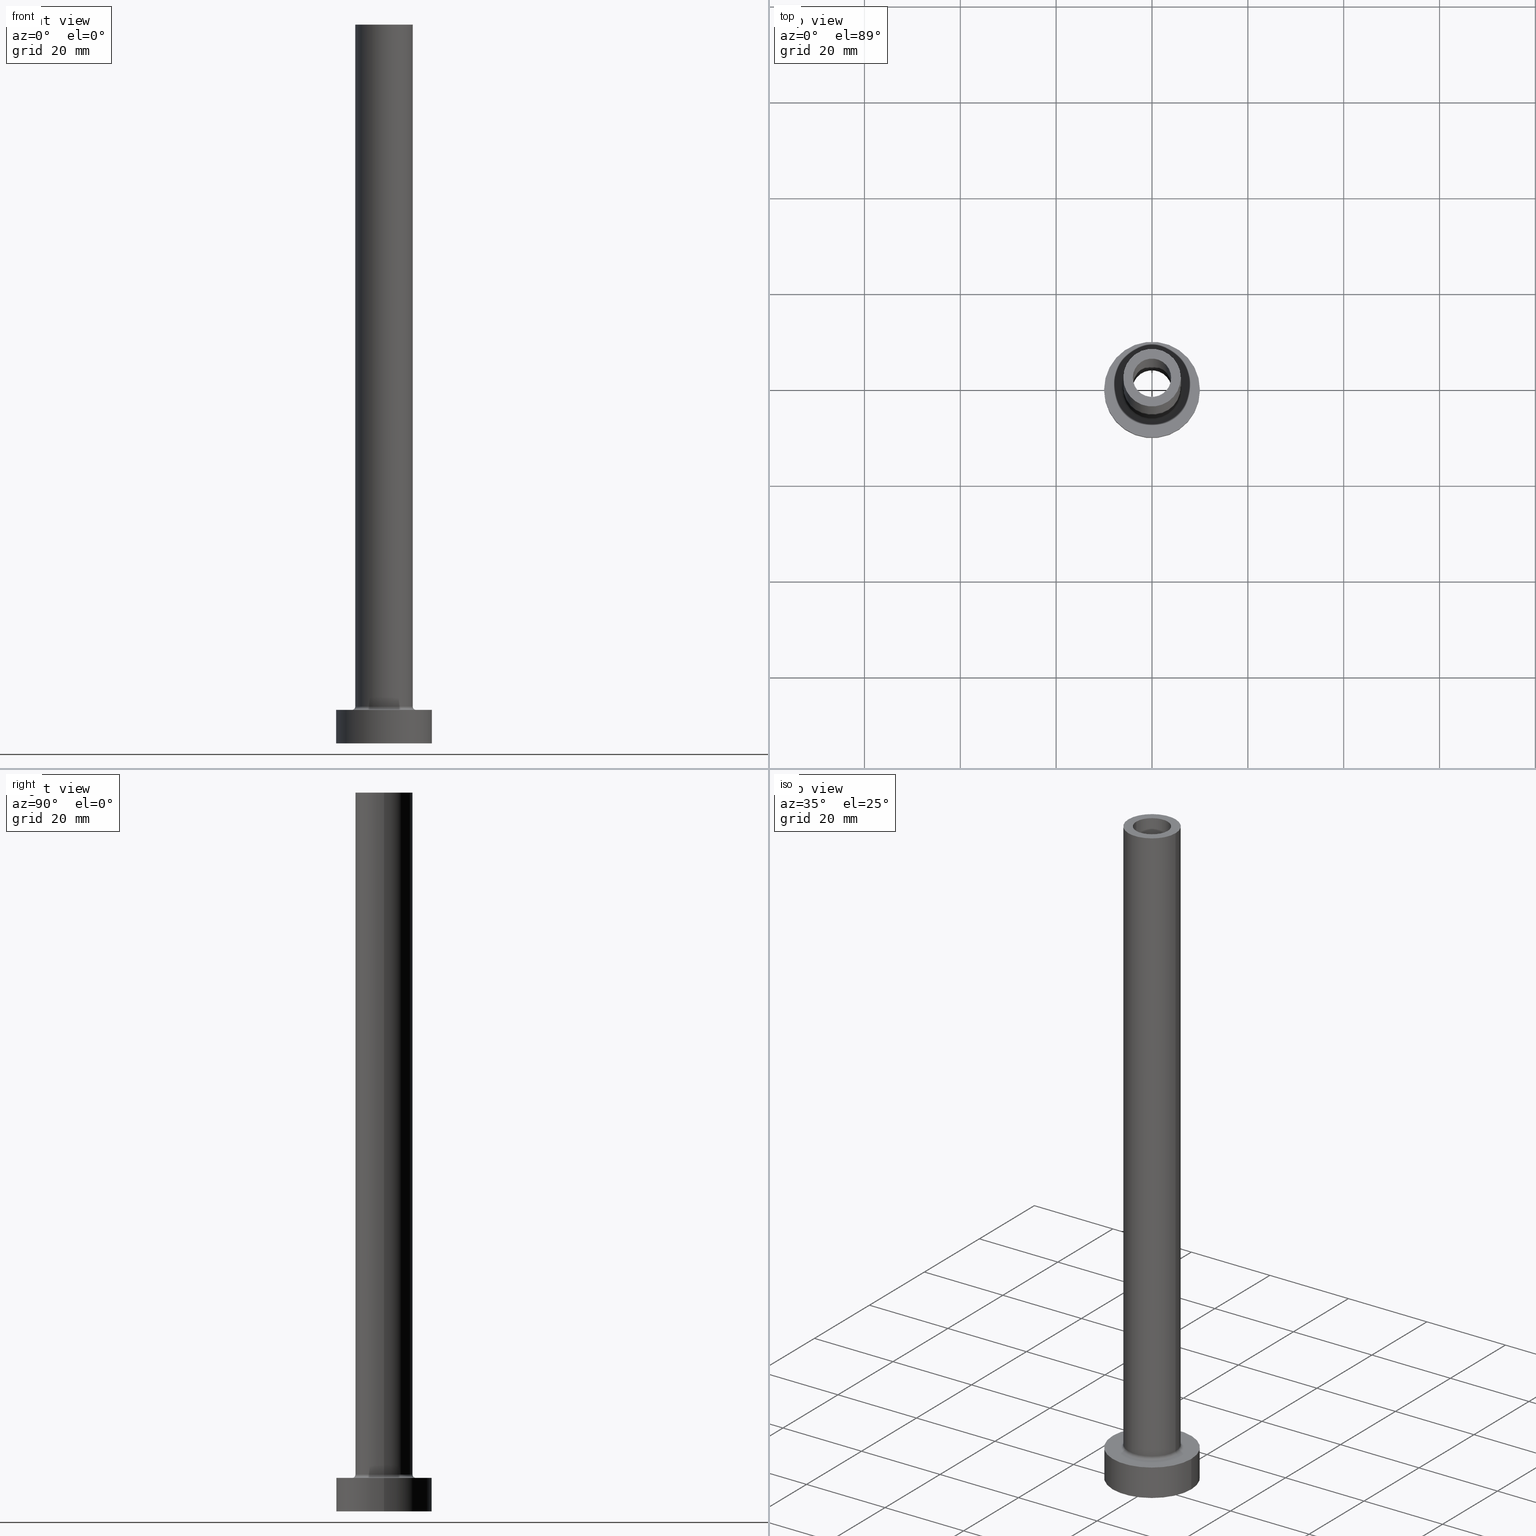
[diagram: canonical four-view strip — front | top / right | iso, engineering-drawing reading convention]
A machine part, canonical four-view strip (front | top / right | iso — engineering-drawing reading convention). The complete STEP part file that produces these views, byte-faithful:
ISO-10303-21;
HEADER;
FILE_DESCRIPTION (( 'STEP AP203' ),
    '1' );
FILE_NAME ('7359.STEP',
    '2023-02-13T09:10:50',
    ( '' ),
    ( '' ),
    'SwSTEP 2.0',
    'SolidWorks 2019',
    '' );
FILE_SCHEMA (( 'CONFIG_CONTROL_DESIGN' ));
ENDSEC;

DATA;
#1 = CARTESIAN_POINT ( 'NONE',  ( 0.000000000000000000, 0.000000000000000000, 150.0000000000000000 ) ) ;
#2 = ADVANCED_FACE ( 'NONE', ( #198, #190 ), #298, .T. ) ;
#3 = DIRECTION ( 'NONE',  ( 0.000000000000000000, 0.000000000000000000, -1.000000000000000000 ) ) ;
#4 = PERSON_AND_ORGANIZATION ( #136, #15 ) ;
#5 = DIRECTION ( 'NONE',  ( -0.000000000000000000, -0.000000000000000000, -1.000000000000000000 ) ) ;
#6 = ADVANCED_FACE ( 'NONE', ( #373 ), #400, .F. ) ;
#7 = ORIENTED_EDGE ( 'NONE', *, *, #301, .T. ) ;
#8 = CARTESIAN_POINT ( 'NONE',  ( -10.00000000000000000, 0.000000000000000000, 0.000000000000000000 ) ) ;
#9 = ADVANCED_BREP_SHAPE_REPRESENTATION ( '7359', ( #123, #105 ), #338 ) ;
#10 = EDGE_CURVE ( 'NONE', #386, #135, #185, .T. ) ;
#11 = DIRECTION ( 'NONE',  ( 1.000000000000000000, 0.000000000000000000, 0.000000000000000000 ) ) ;
#12 = VERTEX_POINT ( 'NONE', #16 ) ;
#13 = APPROVAL_DATE_TIME ( #336, #333 ) ;
#14 = CIRCLE ( 'NONE', #263, 10.00000000000000000 ) ;
#15 = ORGANIZATION ( 'NEUR�EN�', 'NEUR�EN�', '' ) ;
#16 = CARTESIAN_POINT ( 'NONE',  ( 10.00000000000000000, 1.224646799147353256E-15, 0.000000000000000000 ) ) ;
#17 = ORIENTED_EDGE ( 'NONE', *, *, #220, .T. ) ;
#18 = SHAPE_DEFINITION_REPRESENTATION ( #427, #9 ) ;
#19 = VERTEX_POINT ( 'NONE', #444 ) ;
#20 = PERSON_AND_ORGANIZATION_ROLE ( 'classification_officer' ) ;
#21 = LINE ( 'NONE', #131, #148 ) ;
#22 = ORIENTED_EDGE ( 'NONE', *, *, #242, .T. ) ;
#23 = DIRECTION ( 'NONE',  ( 1.000000000000000000, 0.000000000000000000, -0.000000000000000000 ) ) ;
#24 = AXIS2_PLACEMENT_3D ( 'NONE', #395, #48, #262 ) ;
#25 = ORIENTED_EDGE ( 'NONE', *, *, #277, .F. ) ;
#26 = EDGE_CURVE ( 'NONE', #374, #12, #75, .T. ) ;
#27 = FACE_BOUND ( 'NONE', #54, .T. ) ;
#28 = ORIENTED_EDGE ( 'NONE', *, *, #300, .F. ) ;
#29 = CARTESIAN_POINT ( 'NONE',  ( 4.150000000000000355, 5.082284216461515156E-16, 0.000000000000000000 ) ) ;
#30 = DIRECTION ( 'NONE',  ( 1.224646799147353207E-16, 1.000000000000000000, -0.000000000000000000 ) ) ;
#31 = AXIS2_PLACEMENT_3D ( 'NONE', #187, #364, #113 ) ;
#32 = LOCAL_TIME ( 10, 10, 50.00000000000000000, #379 ) ;
#33 = DIRECTION ( 'NONE',  ( 0.000000000000000000, 0.000000000000000000, 1.000000000000000000 ) ) ;
#34 = DIRECTION ( 'NONE',  ( 0.000000000000000000, 0.000000000000000000, -1.000000000000000000 ) ) ;
#35 = LINE ( 'NONE', #287, #375 ) ;
#36 = AXIS2_PLACEMENT_3D ( 'NONE', #305, #99, #56 ) ;
#37 = CIRCLE ( 'NONE', #174, 4.150000000000000355 ) ;
#38 = DIRECTION ( 'NONE',  ( 1.000000000000000000, 0.000000000000000000, 0.000000000000000000 ) ) ;
#39 = DIRECTION ( 'NONE',  ( 1.000000000000000000, 0.000000000000000000, 0.000000000000000000 ) ) ;
#40 = VERTEX_POINT ( 'NONE', #8 ) ;
#41 = AXIS2_PLACEMENT_3D ( 'NONE', #348, #201, #414 ) ;
#42 = LOCAL_TIME ( 10, 10, 50.00000000000000000, #200 ) ;
#43 = DIRECTION ( 'NONE',  ( 0.000000000000000000, 0.000000000000000000, 1.000000000000000000 ) ) ;
#44 = ORIENTED_EDGE ( 'NONE', *, *, #397, .T. ) ;
#45 = DIRECTION ( 'NONE',  ( 0.000000000000000000, 0.000000000000000000, 1.000000000000000000 ) ) ;
#46 = EDGE_LOOP ( 'NONE', ( #210, #80 ) ) ;
#47 = APPROVAL_ROLE ( '' ) ;
#48 = DIRECTION ( 'NONE',  ( 0.000000000000000000, 0.000000000000000000, 1.000000000000000000 ) ) ;
#49 = VERTEX_POINT ( 'NONE', #340 ) ;
#50 = PERSON_AND_ORGANIZATION ( #136, #15 ) ;
#51 = CIRCLE ( 'NONE', #195, 6.000000000000000888 ) ;
#52 = LOCAL_TIME ( 10, 10, 50.00000000000000000, #308 ) ;
#53 = CARTESIAN_POINT ( 'NONE',  ( 0.000000000000000000, 0.000000000000000000, 105.0000000000000000 ) ) ;
#54 = EDGE_LOOP ( 'NONE', ( #442, #60 ) ) ;
#55 = PERSON_AND_ORGANIZATION ( #136, #15 ) ;
#56 = DIRECTION ( 'NONE',  ( -1.000000000000000000, 0.000000000000000000, 0.000000000000000000 ) ) ;
#57 = ORIENTED_EDGE ( 'NONE', *, *, #313, .F. ) ;
#58 = EDGE_CURVE ( 'NONE', #189, #303, #431, .T. ) ;
#59 = DIRECTION ( 'NONE',  ( 1.000000000000000000, 0.000000000000000000, 0.000000000000000000 ) ) ;
#60 = ORIENTED_EDGE ( 'NONE', *, *, #435, .F. ) ;
#61 = FACE_OUTER_BOUND ( 'NONE', #370, .T. ) ;
#62 = CIRCLE ( 'NONE', #97, 6.000000000000000888 ) ;
#63 = AXIS2_PLACEMENT_3D ( 'NONE', #109, #285, #101 ) ;
#64 = DIRECTION ( 'NONE',  ( -0.000000000000000000, -0.000000000000000000, -1.000000000000000000 ) ) ;
#65 = ORIENTED_EDGE ( 'NONE', *, *, #111, .T. ) ;
#66 = DIRECTION ( 'NONE',  ( 0.000000000000000000, 0.000000000000000000, 1.000000000000000000 ) ) ;
#67 = ORIENTED_EDGE ( 'NONE', *, *, #106, .F. ) ;
#68 = DIRECTION ( 'NONE',  ( -1.000000000000000000, 0.000000000000000000, 0.000000000000000000 ) ) ;
#69 = CIRCLE ( 'NONE', #165, 4.000000000000000000 ) ;
#70 = LINE ( 'NONE', #457, #130 ) ;
#71 = PRODUCT_DEFINITION ( 'NEZN�M�', '', #363, #230 ) ;
#72 = DIRECTION ( 'NONE',  ( 0.000000000000000000, 0.000000000000000000, -1.000000000000000000 ) ) ;
#73 = DIRECTION ( 'NONE',  ( 0.000000000000000000, 0.000000000000000000, 1.000000000000000000 ) ) ;
#74 = DIRECTION ( 'NONE',  ( 0.000000000000000000, 0.000000000000000000, 1.000000000000000000 ) ) ;
#75 = LINE ( 'NONE', #228, #365 ) ;
#76 = AXIS2_PLACEMENT_3D ( 'NONE', #169, #449, #163 ) ;
#77 = DIRECTION ( 'NONE',  ( -0.000000000000000000, -0.000000000000000000, -1.000000000000000000 ) ) ;
#78 = EDGE_LOOP ( 'NONE', ( #22, #401 ) ) ;
#79 = DIRECTION ( 'NONE',  ( 0.000000000000000000, 0.000000000000000000, -1.000000000000000000 ) ) ;
#80 = ORIENTED_EDGE ( 'NONE', *, *, #106, .T. ) ;
#81 = DATE_AND_TIME ( #448, #42 ) ;
#82 = EDGE_LOOP ( 'NONE', ( #108, #154, #410, #202 ) ) ;
#83 = VERTEX_POINT ( 'NONE', #149 ) ;
#84 = APPROVAL_ROLE ( '' ) ;
#85 = CIRCLE ( 'NONE', #274, 4.000000000000000000 ) ;
#86 = ADVANCED_FACE ( 'NONE', ( #221 ), #122, .T. ) ;
#87 = CARTESIAN_POINT ( 'NONE',  ( -6.700000000000001066, 8.205133554287267548E-16, 7.000000000000006217 ) ) ;
#88 = ORIENTED_EDGE ( 'NONE', *, *, #249, .F. ) ;
#89 = APPROVAL_DATE_TIME ( #268, #317 ) ;
#90 = EDGE_CURVE ( 'NONE', #12, #40, #350, .T. ) ;
#91 = DIRECTION ( 'NONE',  ( 0.000000000000000000, 0.000000000000000000, 1.000000000000000000 ) ) ;
#92 = ORIENTED_EDGE ( 'NONE', *, *, #389, .T. ) ;
#93 = APPROVAL_ROLE ( '' ) ;
#94 = DIRECTION ( 'NONE',  ( -0.000000000000000000, -0.000000000000000000, -1.000000000000000000 ) ) ;
#95 = EDGE_LOOP ( 'NONE', ( #245, #294, #65, #335 ) ) ;
#96 = LINE ( 'NONE', #320, #293 ) ;
#97 = AXIS2_PLACEMENT_3D ( 'NONE', #411, #91, #59 ) ;
#98 = LOCAL_TIME ( 10, 10, 50.00000000000000000, #406 ) ;
#99 = DIRECTION ( 'NONE',  ( -0.000000000000000000, -0.000000000000000000, -1.000000000000000000 ) ) ;
#100 = ORIENTED_EDGE ( 'NONE', *, *, #249, .T. ) ;
#101 = DIRECTION ( 'NONE',  ( -1.000000000000000000, 0.000000000000000000, 0.000000000000000000 ) ) ;
#102 = VERTEX_POINT ( 'NONE', #232 ) ;
#103 = EDGE_CURVE ( 'NONE', #345, #175, #328, .T. ) ;
#104 = DIRECTION ( 'NONE',  ( -1.000000000000000000, 0.000000000000000000, 0.000000000000000000 ) ) ;
#105 = AXIS2_PLACEMENT_3D ( 'NONE', #443, #292, #347 ) ;
#106 = EDGE_CURVE ( 'NONE', #175, #345, #447, .T. ) ;
#107 = FACE_OUTER_BOUND ( 'NONE', #437, .T. ) ;
#108 = ORIENTED_EDGE ( 'NONE', *, *, #26, .F. ) ;
#109 = CARTESIAN_POINT ( 'NONE',  ( 0.000000000000000000, 0.000000000000000000, 116.7379725676966729 ) ) ;
#110 =( LENGTH_UNIT ( ) NAMED_UNIT ( * ) SI_UNIT ( .MILLI., .METRE. ) );
#111 = EDGE_CURVE ( 'NONE', #405, #189, #261, .T. ) ;
#112 = PERSON_AND_ORGANIZATION_ROLE ( 'creator' ) ;
#113 = DIRECTION ( 'NONE',  ( 1.000000000000000000, 0.000000000000000000, 0.000000000000000000 ) ) ;
#114 = EDGE_LOOP ( 'NONE', ( #243, #445 ) ) ;
#115 = EDGE_CURVE ( 'NONE', #374, #49, #398, .T. ) ;
#116 = DIRECTION ( 'NONE',  ( 1.000000000000000000, 0.000000000000000000, 0.000000000000000000 ) ) ;
#117 = EDGE_LOOP ( 'NONE', ( #223, #139, #267, #156 ) ) ;
#118 = CIRCLE ( 'NONE', #319, 4.150000000000000355 ) ;
#119 = DIRECTION ( 'NONE',  ( 1.000000000000000000, 0.000000000000000000, -0.000000000000000000 ) ) ;
#120 = ORIENTED_EDGE ( 'NONE', *, *, #103, .F. ) ;
#121 = PERSON_AND_ORGANIZATION_ROLE ( 'design_owner' ) ;
#122 = CYLINDRICAL_SURFACE ( 'NONE', #392, 6.000000000000000888 ) ;
#123 = MANIFOLD_SOLID_BREP ( 'Odebrat vysunut�m4', #424 ) ;
#124 = APPROVAL_STATUS ( 'not_yet_approved' ) ;
#125 = DIRECTION ( 'NONE',  ( 1.000000000000000000, 0.000000000000000000, 0.000000000000000000 ) ) ;
#126 = EDGE_LOOP ( 'NONE', ( #28, #25 ) ) ;
#127 = EDGE_CURVE ( 'NONE', #19, #415, #253, .T. ) ;
#128 = UNCERTAINTY_MEASURE_WITH_UNIT (LENGTH_MEASURE( 1.000000000000000082E-05 ), #110, 'distance_accuracy_value', 'NONE');
#129 = AXIS2_PLACEMENT_3D ( 'NONE', #250, #94, #283 ) ;
#130 = VECTOR ( 'NONE', #3, 1000.000000000000000 ) ;
#131 = CARTESIAN_POINT ( 'NONE',  ( -10.00000000000000000, 0.000000000000000000, 7.000000000000000000 ) ) ;
#132 = PERSON_AND_ORGANIZATION ( #136, #15 ) ;
#133 = FACE_OUTER_BOUND ( 'NONE', #420, .T. ) ;
#134 = CARTESIAN_POINT ( 'NONE',  ( 0.000000000000000000, 0.000000000000000000, 7.700000000000012612 ) ) ;
#135 = VERTEX_POINT ( 'NONE', #193 ) ;
#136 = PERSON ( 'NEUR�EN�', 'NEUR�EN�', 'NEUR�EN�', ('NEUR�EN�'), ('NEUR�EN�'), ('NEUR�EN�') ) ;
#137 = FACE_OUTER_BOUND ( 'NONE', #117, .T. ) ;
#138 = CC_DESIGN_SECURITY_CLASSIFICATION ( #418, ( #363 ) ) ;
#139 = ORIENTED_EDGE ( 'NONE', *, *, #26, .T. ) ;
#140 = DIRECTION ( 'NONE',  ( -0.000000000000000000, -0.000000000000000000, -1.000000000000000000 ) ) ;
#141 = DIRECTION ( 'NONE',  ( 0.000000000000000000, 0.000000000000000000, -1.000000000000000000 ) ) ;
#142 = EDGE_CURVE ( 'NONE', #40, #12, #207, .T. ) ;
#143 = CC_DESIGN_PERSON_AND_ORGANIZATION_ASSIGNMENT ( #50, #20, ( #418 ) ) ;
#144 = DIRECTION ( 'NONE',  ( -0.000000000000000000, -0.000000000000000000, -1.000000000000000000 ) ) ;
#145 = DIRECTION ( 'NONE',  ( -0.000000000000000000, -0.000000000000000000, -1.000000000000000000 ) ) ;
#146 = CARTESIAN_POINT ( 'NONE',  ( 4.000000000000000000, 4.898587196589411843E-16, 150.0000000000000000 ) ) ;
#147 = CALENDAR_DATE ( 2023, 13, 2 ) ;
#148 = VECTOR ( 'NONE', #64, 1000.000000000000000 ) ;
#149 = CARTESIAN_POINT ( 'NONE',  ( -6.000000000000000888, 0.000000000000000000, 150.0000000000000000 ) ) ;
#150 = ORIENTED_EDGE ( 'NONE', *, *, #142, .F. ) ;
#151 = EDGE_CURVE ( 'NONE', #135, #345, #246, .T. ) ;
#152 = ADVANCED_FACE ( 'NONE', ( #266 ), #159, .T. ) ;
#153 = DIRECTION ( 'NONE',  ( 0.000000000000000000, 0.000000000000000000, -1.000000000000000000 ) ) ;
#154 = ORIENTED_EDGE ( 'NONE', *, *, #220, .F. ) ;
#155 = CARTESIAN_POINT ( 'NONE',  ( -4.000000000000000000, 0.000000000000000000, 150.0000000000000000 ) ) ;
#156 = ORIENTED_EDGE ( 'NONE', *, *, #323, .F. ) ;
#157 = AXIS2_PLACEMENT_3D ( 'NONE', #330, #372, #269 ) ;
#158 = APPROVAL_PERSON_ORGANIZATION ( #432, #161, #93 ) ;
#159 = CYLINDRICAL_SURFACE ( 'NONE', #36, 6.000000000000000888 ) ;
#160 = DIRECTION ( 'NONE',  ( -0.000000000000000000, -0.000000000000000000, -1.000000000000000000 ) ) ;
#161 = APPROVAL ( #393, 'NEUR�EN�' ) ;
#162 = DATE_AND_TIME ( #206, #32 ) ;
#163 = DIRECTION ( 'NONE',  ( 1.000000000000000000, 0.000000000000000000, 0.000000000000000000 ) ) ;
#164 = DATE_AND_TIME ( #413, #275 ) ;
#165 = AXIS2_PLACEMENT_3D ( 'NONE', #237, #378, #312 ) ;
#166 = AXIS2_PLACEMENT_3D ( 'NONE', #290, #324, #38 ) ;
#167 = CARTESIAN_POINT ( 'NONE',  ( 0.000000000000000000, 0.000000000000000000, 105.0000000000000000 ) ) ;
#168 = ORIENTED_EDGE ( 'NONE', *, *, #300, .T. ) ;
#169 = CARTESIAN_POINT ( 'NONE',  ( 0.000000000000000000, 0.000000000000000000, 105.0000000000000000 ) ) ;
#170 = ORIENTED_EDGE ( 'NONE', *, *, #242, .F. ) ;
#171 = DIRECTION ( 'NONE',  ( -0.000000000000000000, -0.000000000000000000, -1.000000000000000000 ) ) ;
#172 = AXIS2_PLACEMENT_3D ( 'NONE', #399, #74, #119 ) ;
#173 = DIRECTION ( 'NONE',  ( 1.000000000000000000, 0.000000000000000000, 0.000000000000000000 ) ) ;
#174 = AXIS2_PLACEMENT_3D ( 'NONE', #178, #144, #421 ) ;
#175 = VERTEX_POINT ( 'NONE', #87 ) ;
#176 = DIRECTION ( 'NONE',  ( 1.000000000000000000, 0.000000000000000000, 0.000000000000000000 ) ) ;
#177 = ADVANCED_FACE ( 'NONE', ( #137 ), #450, .T. ) ;
#178 = CARTESIAN_POINT ( 'NONE',  ( 0.000000000000000000, 0.000000000000000000, 0.000000000000000000 ) ) ;
#179 = PRODUCT ( '7359', '7359', '', ( #196 ) ) ;
#180 = DIRECTION ( 'NONE',  ( 1.000000000000000000, 0.000000000000000000, -0.000000000000000000 ) ) ;
#181 = EDGE_LOOP ( 'NONE', ( #264, #170, #100, #458 ) ) ;
#182 = PRODUCT_RELATED_PRODUCT_CATEGORY ( 'detail', '', ( #179 ) ) ;
#183 = CARTESIAN_POINT ( 'NONE',  ( 0.000000000000000000, 0.000000000000000000, 0.000000000000000000 ) ) ;
#184 = CARTESIAN_POINT ( 'NONE',  ( 0.000000000000000000, 0.000000000000000000, 7.000000000000000000 ) ) ;
#185 = LINE ( 'NONE', #436, #281 ) ;
#186 = AXIS2_PLACEMENT_3D ( 'NONE', #219, #43, #116 ) ;
#187 = CARTESIAN_POINT ( 'NONE',  ( 0.000000000000000000, 0.000000000000000000, 7.000000000000000000 ) ) ;
#188 = ADVANCED_FACE ( 'NONE', ( #353, #419 ), #279, .F. ) ;
#189 = VERTEX_POINT ( 'NONE', #309 ) ;
#190 = FACE_OUTER_BOUND ( 'NONE', #78, .T. ) ;
#191 = ORIENTED_EDGE ( 'NONE', *, *, #241, .F. ) ;
#192 = CALENDAR_DATE ( 2023, 13, 2 ) ;
#193 = CARTESIAN_POINT ( 'NONE',  ( 6.000000000000000888, 7.347880794884120722E-16, 7.700000000000012612 ) ) ;
#194 = EDGE_LOOP ( 'NONE', ( #354, #7 ) ) ;
#195 = AXIS2_PLACEMENT_3D ( 'NONE', #387, #66, #380 ) ;
#196 = MECHANICAL_CONTEXT ( 'NONE', #297, 'mechanical' ) ;
#197 = CC_DESIGN_PERSON_AND_ORGANIZATION_ASSIGNMENT ( #203, #121, ( #179 ) ) ;
#198 = FACE_BOUND ( 'NONE', #126, .T. ) ;
#199 = EDGE_LOOP ( 'NONE', ( #296, #412, #291, #88 ) ) ;
#200 = COORDINATED_UNIVERSAL_TIME_OFFSET ( 1, 0, .AHEAD. ) ;
#201 = DIRECTION ( 'NONE',  ( 0.000000000000000000, 0.000000000000000000, 1.000000000000000000 ) ) ;
#202 = ORIENTED_EDGE ( 'NONE', *, *, #142, .T. ) ;
#203 = PERSON_AND_ORGANIZATION ( #136, #15 ) ;
#204 = DIRECTION ( 'NONE',  ( 0.000000000000000000, 0.000000000000000000, 1.000000000000000000 ) ) ;
#205 = ORIENTED_EDGE ( 'NONE', *, *, #260, .F. ) ;
#206 = CALENDAR_DATE ( 2023, 13, 2 ) ;
#207 = CIRCLE ( 'NONE', #459, 10.00000000000000000 ) ;
#208 = DIRECTION ( 'NONE',  ( 0.000000000000000000, 0.000000000000000000, 1.000000000000000000 ) ) ;
#209 = CARTESIAN_POINT ( 'NONE',  ( 0.000000000000000000, 0.000000000000000000, 150.0000000000000000 ) ) ;
#210 = ORIENTED_EDGE ( 'NONE', *, *, #103, .T. ) ;
#211 = CARTESIAN_POINT ( 'NONE',  ( -4.150000000000000355, 0.000000000000000000, 0.000000000000000000 ) ) ;
#212 = ORIENTED_EDGE ( 'NONE', *, *, #360, .F. ) ;
#213 = CIRCLE ( 'NONE', #460, 6.000000000000000888 ) ;
#214 = FACE_OUTER_BOUND ( 'NONE', #368, .T. ) ;
#215 =( NAMED_UNIT ( * ) SI_UNIT ( $, .STERADIAN. ) SOLID_ANGLE_UNIT ( ) );
#216 = AXIS2_PLACEMENT_3D ( 'NONE', #337, #302, #439 ) ;
#217 = APPROVAL_PERSON_ORGANIZATION ( #4, #333, #47 ) ;
#218 = CARTESIAN_POINT ( 'NONE',  ( -4.000000000000000000, 0.000000000000000000, 150.0000000000000000 ) ) ;
#219 = CARTESIAN_POINT ( 'NONE',  ( 0.000000000000000000, 0.000000000000000000, 105.0000000000000000 ) ) ;
#220 = EDGE_CURVE ( 'NONE', #49, #374, #14, .T. ) ;
#221 = FACE_OUTER_BOUND ( 'NONE', #199, .T. ) ;
#222 = CIRCLE ( 'NONE', #76, 4.000000000000000000 ) ;
#223 = ORIENTED_EDGE ( 'NONE', *, *, #115, .F. ) ;
#224 = AXIS2_PLACEMENT_3D ( 'NONE', #248, #30, #344 ) ;
#225 = CARTESIAN_POINT ( 'NONE',  ( 0.000000000000000000, 0.000000000000000000, 0.000000000000000000 ) ) ;
#226 = VERTEX_POINT ( 'NONE', #211 ) ;
#227 = PERSON_AND_ORGANIZATION_ROLE ( 'design_supplier' ) ;
#228 = CARTESIAN_POINT ( 'NONE',  ( 10.00000000000000000, 1.224646799147353256E-15, 7.000000000000000000 ) ) ;
#229 = VERTEX_POINT ( 'NONE', #29 ) ;
#230 = DESIGN_CONTEXT ( 'detailed design', #286, 'design' ) ;
#231 = CC_DESIGN_PERSON_AND_ORGANIZATION_ASSIGNMENT ( #271, #235, ( #363 ) ) ;
#232 = CARTESIAN_POINT ( 'NONE',  ( -6.000000000000000888, 0.000000000000000000, 7.700000000000012612 ) ) ;
#233 = AXIS2_PLACEMENT_3D ( 'NONE', #441, #79, #433 ) ;
#234 = AXIS2_PLACEMENT_3D ( 'NONE', #183, #145, #176 ) ;
#235 = PERSON_AND_ORGANIZATION_ROLE ( 'creator' ) ;
#236 = APPROVAL_PERSON_ORGANIZATION ( #311, #317, #84 ) ;
#237 = CARTESIAN_POINT ( 'NONE',  ( 0.000000000000000000, 0.000000000000000000, 150.0000000000000000 ) ) ;
#238 = EDGE_LOOP ( 'NONE', ( #150, #329 ) ) ;
#239 = COORDINATED_UNIVERSAL_TIME_OFFSET ( 1, 0, .AHEAD. ) ;
#240 = PLANE ( 'NONE',  #255 ) ;
#241 = EDGE_CURVE ( 'NONE', #102, #135, #51, .T. ) ;
#242 = EDGE_CURVE ( 'NONE', #83, #386, #318, .T. ) ;
#243 = ORIENTED_EDGE ( 'NONE', *, *, #346, .F. ) ;
#244 = DIRECTION ( 'NONE',  ( 1.000000000000000000, 0.000000000000000000, 0.000000000000000000 ) ) ;
#245 = ORIENTED_EDGE ( 'NONE', *, *, #389, .F. ) ;
#246 = CIRCLE ( 'NONE', #216, 0.7000000000000000666 ) ;
#247 = AXIS2_PLACEMENT_3D ( 'NONE', #184, #140, #104 ) ;
#248 = CARTESIAN_POINT ( 'NONE',  ( -6.700000000000001066, 8.205133554287267548E-16, 7.700000000000012612 ) ) ;
#249 = EDGE_CURVE ( 'NONE', #83, #102, #96, .T. ) ;
#250 = CARTESIAN_POINT ( 'NONE',  ( 0.000000000000000000, 0.000000000000000000, 7.000000000000000000 ) ) ;
#251 = CARTESIAN_POINT ( 'NONE',  ( 0.000000000000000000, 0.000000000000000000, 7.000000000000000000 ) ) ;
#252 = ORIENTED_EDGE ( 'NONE', *, *, #111, .F. ) ;
#253 = CIRCLE ( 'NONE', #408, 4.150000000000000355 ) ;
#254 = PLANE ( 'NONE',  #384 ) ;
#255 = AXIS2_PLACEMENT_3D ( 'NONE', #314, #204, #23 ) ;
#256 = CYLINDRICAL_SURFACE ( 'NONE', #265, 4.000000000000000000 ) ;
#257 = CARTESIAN_POINT ( 'NONE',  ( 4.150000000000000355, 5.082284216461515156E-16, 116.7379725676966729 ) ) ;
#258 = AXIS2_PLACEMENT_3D ( 'NONE', #167, #278, #407 ) ;
#259 = APPLICATION_PROTOCOL_DEFINITION ( 'international standard', 'config_control_design', 1994, #286 ) ;
#260 = EDGE_CURVE ( 'NONE', #135, #102, #62, .T. ) ;
#261 = LINE ( 'NONE', #155, #356 ) ;
#262 = DIRECTION ( 'NONE',  ( 1.000000000000000000, 0.000000000000000000, 0.000000000000000000 ) ) ;
#263 = AXIS2_PLACEMENT_3D ( 'NONE', #416, #446, #173 ) ;
#264 = ORIENTED_EDGE ( 'NONE', *, *, #10, .F. ) ;
#265 = AXIS2_PLACEMENT_3D ( 'NONE', #428, #72, #68 ) ;
#266 = FACE_OUTER_BOUND ( 'NONE', #181, .T. ) ;
#267 = ORIENTED_EDGE ( 'NONE', *, *, #90, .T. ) ;
#268 = DATE_AND_TIME ( #147, #98 ) ;
#269 = DIRECTION ( 'NONE',  ( 1.000000000000000000, 0.000000000000000000, 0.000000000000000000 ) ) ;
#270 = ORIENTED_EDGE ( 'NONE', *, *, #115, .T. ) ;
#271 = PERSON_AND_ORGANIZATION ( #136, #15 ) ;
#272 = CARTESIAN_POINT ( 'NONE',  ( 4.000000000000000000, 4.898587196589411843E-16, 105.0000000000000000 ) ) ;
#273 = ORIENTED_EDGE ( 'NONE', *, *, #435, .T. ) ;
#274 = AXIS2_PLACEMENT_3D ( 'NONE', #454, #351, #244 ) ;
#275 = LOCAL_TIME ( 10, 10, 50.00000000000000000, #239 ) ;
#276 = FACE_OUTER_BOUND ( 'NONE', #238, .T. ) ;
#277 = EDGE_CURVE ( 'NONE', #355, #405, #85, .T. ) ;
#278 = DIRECTION ( 'NONE',  ( 0.000000000000000000, 0.000000000000000000, 1.000000000000000000 ) ) ;
#279 = PLANE ( 'NONE',  #258 ) ;
#280 = ORIENTED_EDGE ( 'NONE', *, *, #127, .T. ) ;
#281 = VECTOR ( 'NONE', #5, 1000.000000000000000 ) ;
#282 = CC_DESIGN_APPROVAL ( #333, ( #418 ) ) ;
#283 = DIRECTION ( 'NONE',  ( -1.000000000000000000, 0.000000000000000000, 0.000000000000000000 ) ) ;
#284 = ORIENTED_EDGE ( 'NONE', *, *, #151, .F. ) ;
#285 = DIRECTION ( 'NONE',  ( 0.000000000000000000, 0.000000000000000000, -1.000000000000000000 ) ) ;
#286 = APPLICATION_CONTEXT ( 'configuration controlled 3d designs of mechanical parts and assemblies' ) ;
#287 = CARTESIAN_POINT ( 'NONE',  ( 4.000000000000000000, 4.898587196589411843E-16, 150.0000000000000000 ) ) ;
#288 = LINE ( 'NONE', #257, #453 ) ;
#289 = FACE_OUTER_BOUND ( 'NONE', #82, .T. ) ;
#290 = CARTESIAN_POINT ( 'NONE',  ( 0.000000000000000000, 0.000000000000000000, 7.700000000000012612 ) ) ;
#291 = ORIENTED_EDGE ( 'NONE', *, *, #260, .T. ) ;
#292 = DIRECTION ( 'NONE',  ( 0.000000000000000000, 0.000000000000000000, 1.000000000000000000 ) ) ;
#293 = VECTOR ( 'NONE', #171, 1000.000000000000000 ) ;
#294 = ORIENTED_EDGE ( 'NONE', *, *, #277, .T. ) ;
#295 = CARTESIAN_POINT ( 'NONE',  ( 0.000000000000000000, 0.000000000000000000, 7.000000000000000000 ) ) ;
#296 = ORIENTED_EDGE ( 'NONE', *, *, #461, .F. ) ;
#297 = APPLICATION_CONTEXT ( 'configuration controlled 3d designs of mechanical parts and assemblies' ) ;
#298 = PLANE ( 'NONE',  #172 ) ;
#299 = EDGE_LOOP ( 'NONE', ( #191, #452, #120, #284 ) ) ;
#300 = EDGE_CURVE ( 'NONE', #405, #355, #69, .T. ) ;
#301 = EDGE_CURVE ( 'NONE', #303, #189, #222, .T. ) ;
#302 = DIRECTION ( 'NONE',  ( 0.000000000000000000, -1.000000000000000000, 0.000000000000000000 ) ) ;
#303 = VERTEX_POINT ( 'NONE', #272 ) ;
#304 = CIRCLE ( 'NONE', #234, 4.150000000000000355 ) ;
#305 = CARTESIAN_POINT ( 'NONE',  ( 0.000000000000000000, 0.000000000000000000, 150.0000000000000000 ) ) ;
#306 = DATE_TIME_ROLE ( 'creation_date' ) ;
#307 = DIRECTION ( 'NONE',  ( 0.000000000000000000, 0.000000000000000000, 1.000000000000000000 ) ) ;
#308 = COORDINATED_UNIVERSAL_TIME_OFFSET ( 1, 0, .AHEAD. ) ;
#309 = CARTESIAN_POINT ( 'NONE',  ( -4.000000000000000000, 0.000000000000000000, 105.0000000000000000 ) ) ;
#310 = ADVANCED_FACE ( 'NONE', ( #61 ), #362, .F. ) ;
#311 = PERSON_AND_ORGANIZATION ( #136, #15 ) ;
#312 = DIRECTION ( 'NONE',  ( 1.000000000000000000, 0.000000000000000000, 0.000000000000000000 ) ) ;
#313 = EDGE_CURVE ( 'NONE', #102, #175, #409, .T. ) ;
#314 = CARTESIAN_POINT ( 'NONE',  ( 0.000000000000000000, 0.000000000000000000, 0.000000000000000000 ) ) ;
#315 = ORIENTED_EDGE ( 'NONE', *, *, #360, .T. ) ;
#316 = DIRECTION ( 'NONE',  ( 0.000000000000000000, 0.000000000000000000, -1.000000000000000000 ) ) ;
#317 = APPROVAL ( #124, 'NEUR�EN�' ) ;
#318 = CIRCLE ( 'NONE', #41, 6.000000000000000888 ) ;
#319 = AXIS2_PLACEMENT_3D ( 'NONE', #322, #33, #456 ) ;
#320 = CARTESIAN_POINT ( 'NONE',  ( -6.000000000000000888, 0.000000000000000000, 150.0000000000000000 ) ) ;
#321 = CARTESIAN_POINT ( 'NONE',  ( 6.700000000000001066, 0.000000000000000000, 7.000000000000006217 ) ) ;
#322 = CARTESIAN_POINT ( 'NONE',  ( 0.000000000000000000, 0.000000000000000000, 105.0000000000000000 ) ) ;
#323 = EDGE_CURVE ( 'NONE', #49, #40, #21, .T. ) ;
#324 = DIRECTION ( 'NONE',  ( 0.000000000000000000, 0.000000000000000000, 1.000000000000000000 ) ) ;
#325 = CC_DESIGN_APPROVAL ( #161, ( #363 ) ) ;
#326 = FACE_OUTER_BOUND ( 'NONE', #299, .T. ) ;
#327 = CARTESIAN_POINT ( 'NONE',  ( -4.150000000000000355, 0.000000000000000000, 105.0000000000000000 ) ) ;
#328 = CIRCLE ( 'NONE', #381, 6.700000000000001066 ) ;
#329 = ORIENTED_EDGE ( 'NONE', *, *, #90, .F. ) ;
#330 = CARTESIAN_POINT ( 'NONE',  ( 0.000000000000000000, 0.000000000000000000, 0.000000000000000000 ) ) ;
#331 = EDGE_LOOP ( 'NONE', ( #396, #315, #273, #404 ) ) ;
#332 = ADVANCED_FACE ( 'NONE', ( #27, #276 ), #240, .F. ) ;
#333 = APPROVAL ( #371, 'NEUR�EN�' ) ;
#334 = CARTESIAN_POINT ( 'NONE',  ( 0.000000000000000000, 0.000000000000000000, 150.0000000000000000 ) ) ;
#335 = ORIENTED_EDGE ( 'NONE', *, *, #301, .F. ) ;
#336 = DATE_AND_TIME ( #192, #52 ) ;
#337 = CARTESIAN_POINT ( 'NONE',  ( 6.700000000000001066, 0.000000000000000000, 7.700000000000012612 ) ) ;
#338 =( GEOMETRIC_REPRESENTATION_CONTEXT ( 3 ) GLOBAL_UNCERTAINTY_ASSIGNED_CONTEXT ( ( #128 ) ) GLOBAL_UNIT_ASSIGNED_CONTEXT ( ( #110, #358, #215 ) ) REPRESENTATION_CONTEXT ( 'NONE', 'WORKASPACE' ) );
#339 = APPROVAL_DATE_TIME ( #164, #161 ) ;
#340 = CARTESIAN_POINT ( 'NONE',  ( -10.00000000000000000, 0.000000000000000000, 7.000000000000000000 ) ) ;
#341 = ORIENTED_EDGE ( 'NONE', *, *, #422, .T. ) ;
#342 = SECURITY_CLASSIFICATION_LEVEL ( 'unclassified' ) ;
#343 = ADVANCED_FACE ( 'NONE', ( #133 ), #385, .F. ) ;
#344 = DIRECTION ( 'NONE',  ( -1.000000000000000000, 1.224646799147353454E-16, 0.000000000000000000 ) ) ;
#345 = VERTEX_POINT ( 'NONE', #321 ) ;
#346 = EDGE_CURVE ( 'NONE', #415, #19, #118, .T. ) ;
#347 = DIRECTION ( 'NONE',  ( 1.000000000000000000, 0.000000000000000000, 0.000000000000000000 ) ) ;
#348 = CARTESIAN_POINT ( 'NONE',  ( 0.000000000000000000, 0.000000000000000000, 150.0000000000000000 ) ) ;
#349 = ADVANCED_FACE ( 'NONE', ( #359 ), #256, .F. ) ;
#350 = CIRCLE ( 'NONE', #157, 10.00000000000000000 ) ;
#351 = DIRECTION ( 'NONE',  ( 0.000000000000000000, 0.000000000000000000, 1.000000000000000000 ) ) ;
#352 = CC_DESIGN_DATE_AND_TIME_ASSIGNMENT ( #162, #376, ( #418 ) ) ;
#353 = FACE_BOUND ( 'NONE', #194, .T. ) ;
#354 = ORIENTED_EDGE ( 'NONE', *, *, #58, .T. ) ;
#355 = VERTEX_POINT ( 'NONE', #146 ) ;
#356 = VECTOR ( 'NONE', #153, 1000.000000000000000 ) ;
#357 = CC_DESIGN_APPROVAL ( #317, ( #71 ) ) ;
#358 =( NAMED_UNIT ( * ) PLANE_ANGLE_UNIT ( ) SI_UNIT ( $, .RADIAN. ) );
#359 = FACE_OUTER_BOUND ( 'NONE', #95, .T. ) ;
#360 = EDGE_CURVE ( 'NONE', #19, #229, #288, .T. ) ;
#361 = CARTESIAN_POINT ( 'NONE',  ( 6.000000000000000888, 7.347880794884120722E-16, 150.0000000000000000 ) ) ;
#362 = TOROIDAL_SURFACE ( 'NONE', #417, 6.700000000000001066, 0.6999999999999999556 ) ;
#363 = PRODUCT_DEFINITION_FORMATION_WITH_SPECIFIED_SOURCE ( 'LIBOVOLN�', '', #179, .NOT_KNOWN. ) ;
#364 = DIRECTION ( 'NONE',  ( -0.000000000000000000, -0.000000000000000000, -1.000000000000000000 ) ) ;
#365 = VECTOR ( 'NONE', #394, 1000.000000000000000 ) ;
#366 = DIRECTION ( 'NONE',  ( -1.000000000000000000, 0.000000000000000000, 0.000000000000000000 ) ) ;
#367 = ADVANCED_FACE ( 'NONE', ( #289 ), #388, .T. ) ;
#368 = EDGE_LOOP ( 'NONE', ( #212, #280, #44, #341 ) ) ;
#369 = DIRECTION ( 'NONE',  ( 1.000000000000000000, 0.000000000000000000, 0.000000000000000000 ) ) ;
#370 = EDGE_LOOP ( 'NONE', ( #57, #205, #434, #67 ) ) ;
#371 = APPROVAL_STATUS ( 'not_yet_approved' ) ;
#372 = DIRECTION ( 'NONE',  ( 0.000000000000000000, 0.000000000000000000, 1.000000000000000000 ) ) ;
#373 = FACE_OUTER_BOUND ( 'NONE', #331, .T. ) ;
#374 = VERTEX_POINT ( 'NONE', #391 ) ;
#375 = VECTOR ( 'NONE', #34, 1000.000000000000000 ) ;
#376 = DATE_TIME_ROLE ( 'classification_date' ) ;
#377 = DIRECTION ( 'NONE',  ( 1.000000000000000000, 0.000000000000000000, 0.000000000000000000 ) ) ;
#378 = DIRECTION ( 'NONE',  ( 0.000000000000000000, 0.000000000000000000, 1.000000000000000000 ) ) ;
#379 = COORDINATED_UNIVERSAL_TIME_OFFSET ( 1, 0, .AHEAD. ) ;
#380 = DIRECTION ( 'NONE',  ( 1.000000000000000000, 0.000000000000000000, 0.000000000000000000 ) ) ;
#381 = AXIS2_PLACEMENT_3D ( 'NONE', #295, #160, #11 ) ;
#382 = ADVANCED_FACE ( 'NONE', ( #214 ), #426, .F. ) ;
#383 = CC_DESIGN_DATE_AND_TIME_ASSIGNMENT ( #81, #306, ( #71 ) ) ;
#384 = AXIS2_PLACEMENT_3D ( 'NONE', #251, #73, #180 ) ;
#385 = CYLINDRICAL_SURFACE ( 'NONE', #425, 4.000000000000000000 ) ;
#386 = VERTEX_POINT ( 'NONE', #361 ) ;
#387 = CARTESIAN_POINT ( 'NONE',  ( 0.000000000000000000, 0.000000000000000000, 7.700000000000012612 ) ) ;
#388 = CYLINDRICAL_SURFACE ( 'NONE', #247, 10.00000000000000000 ) ;
#389 = EDGE_CURVE ( 'NONE', #355, #303, #35, .T. ) ;
#390 = CC_DESIGN_PERSON_AND_ORGANIZATION_ASSIGNMENT ( #55, #112, ( #71 ) ) ;
#391 = CARTESIAN_POINT ( 'NONE',  ( 10.00000000000000000, 1.224646799147353256E-15, 7.000000000000000000 ) ) ;
#392 = AXIS2_PLACEMENT_3D ( 'NONE', #334, #77, #366 ) ;
#393 = APPROVAL_STATUS ( 'not_yet_approved' ) ;
#394 = DIRECTION ( 'NONE',  ( -0.000000000000000000, -0.000000000000000000, -1.000000000000000000 ) ) ;
#395 = CARTESIAN_POINT ( 'NONE',  ( 0.000000000000000000, 0.000000000000000000, 7.000000000000000000 ) ) ;
#396 = ORIENTED_EDGE ( 'NONE', *, *, #346, .T. ) ;
#397 = EDGE_CURVE ( 'NONE', #415, #226, #70, .T. ) ;
#398 = CIRCLE ( 'NONE', #24, 10.00000000000000000 ) ;
#399 = CARTESIAN_POINT ( 'NONE',  ( 0.000000000000000000, 0.000000000000000000, 150.0000000000000000 ) ) ;
#400 = CYLINDRICAL_SURFACE ( 'NONE', #233, 4.150000000000000355 ) ;
#401 = ORIENTED_EDGE ( 'NONE', *, *, #461, .T. ) ;
#402 = ADVANCED_FACE ( 'NONE', ( #423, #107 ), #254, .T. ) ;
#403 = APPLICATION_PROTOCOL_DEFINITION ( 'international standard', 'config_control_design', 1994, #297 ) ;
#404 = ORIENTED_EDGE ( 'NONE', *, *, #397, .F. ) ;
#405 = VERTEX_POINT ( 'NONE', #218 ) ;
#406 = COORDINATED_UNIVERSAL_TIME_OFFSET ( 1, 0, .AHEAD. ) ;
#407 = DIRECTION ( 'NONE',  ( 1.000000000000000000, 0.000000000000000000, -0.000000000000000000 ) ) ;
#408 = AXIS2_PLACEMENT_3D ( 'NONE', #53, #45, #125 ) ;
#409 = CIRCLE ( 'NONE', #224, 0.7000000000000000666 ) ;
#410 = ORIENTED_EDGE ( 'NONE', *, *, #323, .T. ) ;
#411 = CARTESIAN_POINT ( 'NONE',  ( 0.000000000000000000, 0.000000000000000000, 7.700000000000012612 ) ) ;
#412 = ORIENTED_EDGE ( 'NONE', *, *, #10, .T. ) ;
#413 = CALENDAR_DATE ( 2023, 13, 2 ) ;
#414 = DIRECTION ( 'NONE',  ( 1.000000000000000000, 0.000000000000000000, 0.000000000000000000 ) ) ;
#415 = VERTEX_POINT ( 'NONE', #327 ) ;
#416 = CARTESIAN_POINT ( 'NONE',  ( 0.000000000000000000, 0.000000000000000000, 7.000000000000000000 ) ) ;
#417 = AXIS2_PLACEMENT_3D ( 'NONE', #134, #208, #377 ) ;
#418 = SECURITY_CLASSIFICATION ( '', '', #342 ) ;
#419 = FACE_OUTER_BOUND ( 'NONE', #114, .T. ) ;
#420 = EDGE_LOOP ( 'NONE', ( #168, #92, #440, #252 ) ) ;
#421 = DIRECTION ( 'NONE',  ( 1.000000000000000000, 0.000000000000000000, 0.000000000000000000 ) ) ;
#422 = EDGE_CURVE ( 'NONE', #226, #229, #37, .T. ) ;
#423 = FACE_BOUND ( 'NONE', #46, .T. ) ;
#424 = CLOSED_SHELL ( 'NONE', ( #343, #6, #455, #86, #177, #367, #402, #332, #152, #2, #310, #382, #188, #349 ) ) ;
#425 = AXIS2_PLACEMENT_3D ( 'NONE', #209, #316, #451 ) ;
#426 = CYLINDRICAL_SURFACE ( 'NONE', #63, 4.150000000000000355 ) ;
#427 = PRODUCT_DEFINITION_SHAPE ( 'NONE', 'NONE',  #71 ) ;
#428 = CARTESIAN_POINT ( 'NONE',  ( 0.000000000000000000, 0.000000000000000000, 150.0000000000000000 ) ) ;
#429 = CC_DESIGN_PERSON_AND_ORGANIZATION_ASSIGNMENT ( #132, #227, ( #363 ) ) ;
#430 = DIRECTION ( 'NONE',  ( 0.000000000000000000, 0.000000000000000000, 1.000000000000000000 ) ) ;
#431 = CIRCLE ( 'NONE', #186, 4.000000000000000000 ) ;
#432 = PERSON_AND_ORGANIZATION ( #136, #15 ) ;
#433 = DIRECTION ( 'NONE',  ( -1.000000000000000000, 0.000000000000000000, 0.000000000000000000 ) ) ;
#434 = ORIENTED_EDGE ( 'NONE', *, *, #151, .T. ) ;
#435 = EDGE_CURVE ( 'NONE', #229, #226, #304, .T. ) ;
#436 = CARTESIAN_POINT ( 'NONE',  ( 6.000000000000000888, 7.347880794884120722E-16, 150.0000000000000000 ) ) ;
#437 = EDGE_LOOP ( 'NONE', ( #17, #270 ) ) ;
#438 = TOROIDAL_SURFACE ( 'NONE', #166, 6.700000000000001066, 0.6999999999999999556 ) ;
#439 = DIRECTION ( 'NONE',  ( 0.000000000000000000, 0.000000000000000000, -1.000000000000000000 ) ) ;
#440 = ORIENTED_EDGE ( 'NONE', *, *, #58, .F. ) ;
#441 = CARTESIAN_POINT ( 'NONE',  ( 0.000000000000000000, 0.000000000000000000, 116.7379725676966729 ) ) ;
#442 = ORIENTED_EDGE ( 'NONE', *, *, #422, .F. ) ;
#443 = CARTESIAN_POINT ( 'NONE',  ( 0.000000000000000000, 0.000000000000000000, 0.000000000000000000 ) ) ;
#444 = CARTESIAN_POINT ( 'NONE',  ( 4.150000000000000355, 5.082284216461515156E-16, 105.0000000000000000 ) ) ;
#445 = ORIENTED_EDGE ( 'NONE', *, *, #127, .F. ) ;
#446 = DIRECTION ( 'NONE',  ( 0.000000000000000000, 0.000000000000000000, 1.000000000000000000 ) ) ;
#447 = CIRCLE ( 'NONE', #31, 6.700000000000001066 ) ;
#448 = CALENDAR_DATE ( 2023, 13, 2 ) ;
#449 = DIRECTION ( 'NONE',  ( 0.000000000000000000, 0.000000000000000000, 1.000000000000000000 ) ) ;
#450 = CYLINDRICAL_SURFACE ( 'NONE', #129, 10.00000000000000000 ) ;
#451 = DIRECTION ( 'NONE',  ( -1.000000000000000000, 0.000000000000000000, 0.000000000000000000 ) ) ;
#452 = ORIENTED_EDGE ( 'NONE', *, *, #313, .T. ) ;
#453 = VECTOR ( 'NONE', #141, 1000.000000000000000 ) ;
#454 = CARTESIAN_POINT ( 'NONE',  ( 0.000000000000000000, 0.000000000000000000, 150.0000000000000000 ) ) ;
#455 = ADVANCED_FACE ( 'NONE', ( #326 ), #438, .F. ) ;
#456 = DIRECTION ( 'NONE',  ( 1.000000000000000000, 0.000000000000000000, 0.000000000000000000 ) ) ;
#457 = CARTESIAN_POINT ( 'NONE',  ( -4.150000000000000355, 0.000000000000000000, 116.7379725676966729 ) ) ;
#458 = ORIENTED_EDGE ( 'NONE', *, *, #241, .T. ) ;
#459 = AXIS2_PLACEMENT_3D ( 'NONE', #225, #307, #369 ) ;
#460 = AXIS2_PLACEMENT_3D ( 'NONE', #1, #430, #39 ) ;
#461 = EDGE_CURVE ( 'NONE', #386, #83, #213, .T. ) ;
ENDSEC;
END-ISO-10303-21;
